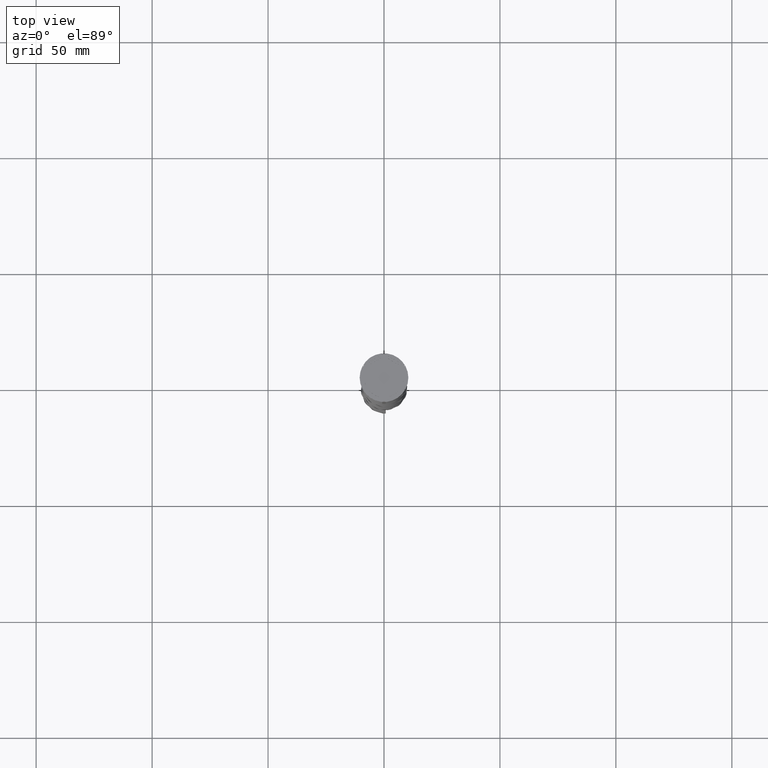
[diagram: clean part render]
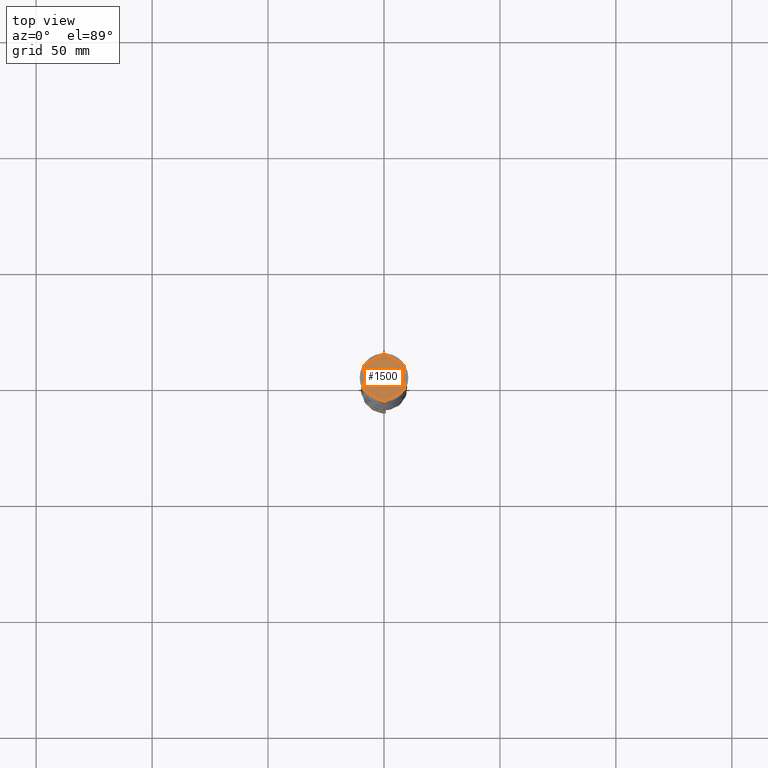
[diagram: same view with one face highlighted and labeled with its STEP entity id]
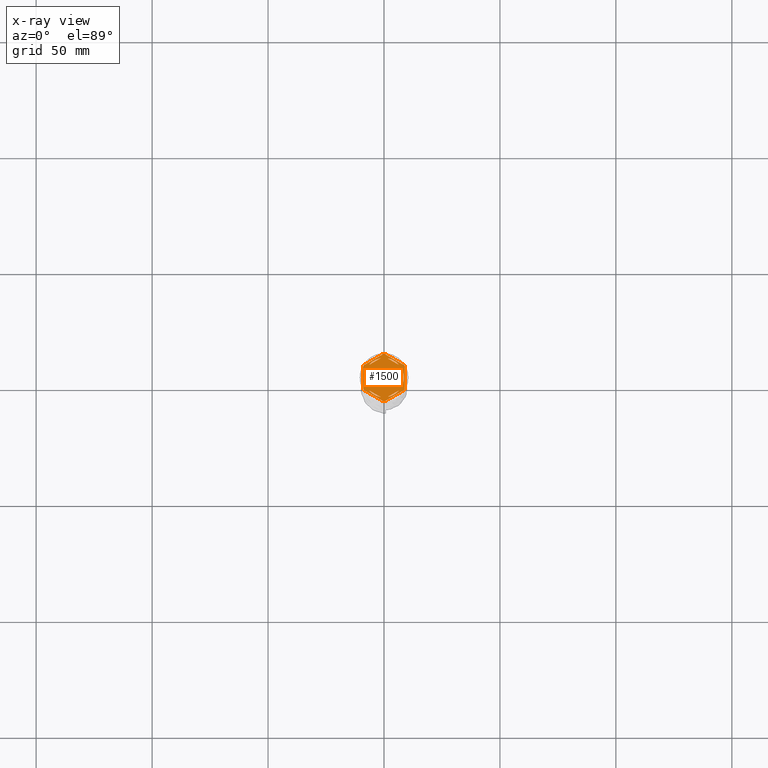
[diagram: x-ray of the same camera — body ghosted, the highlighted face saturated]
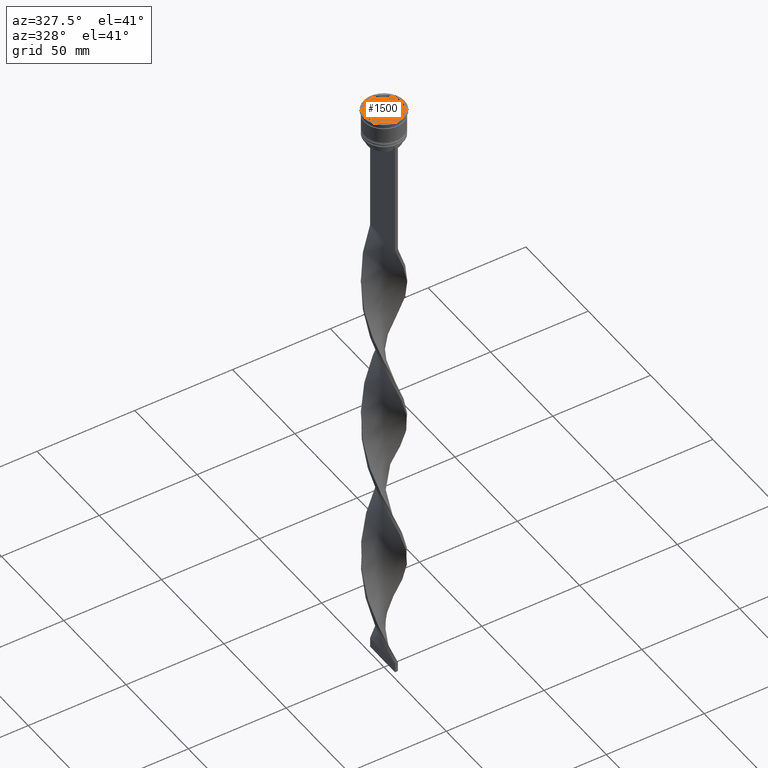
[diagram: same view with one face highlighted and labeled with its STEP entity id]
A machine part, top view. The second image highlights one B-rep face of the part: STEP entity #1500.
The next image is the same camera in x-ray: the body ghosted, the highlighted face saturated — about 0% of this face is hidden behind the body in this view.
A second angle (auxiliary view) of the same face is appended — the face is thin or edge-on in the first view.
In plain terms, the highlighted planar face has unit normal (0, 0, 1).
Its self-contained STEP definition (entity closure, byte-faithful):
#17 = CARTESIAN_POINT ( 'NONE',  ( -8.500000000000000000, 0.000000000000000000, -1.000000000000000000 ) ) ;
#70 = CARTESIAN_POINT ( 'NONE',  ( -9.000000000000001776, 5.196152422706632024, -1.000000000000000000 ) ) ;
#85 = AXIS2_PLACEMENT_3D ( 'NONE', #706, #2031, #2372 ) ;
#88 = VECTOR ( 'NONE', #2494, 1000.000000000000000 ) ;
#136 = CARTESIAN_POINT ( 'NONE',  ( 9.000000000000001776, -5.196152422706632024, -1.000000000000000000 ) ) ;
#250 = EDGE_LOOP ( 'NONE', ( #799, #1407 ) ) ;
#266 = ORIENTED_EDGE ( 'NONE', *, *, #3919, .F. ) ;
#283 = EDGE_CURVE ( 'NONE', #2610, #2583, #2771, .T. ) ;
#284 = FACE_BOUND ( 'NONE', #1393, .T. ) ;
#289 = ORIENTED_EDGE ( 'NONE', *, *, #3538, .F. ) ;
#310 = VERTEX_POINT ( 'NONE', #17 ) ;
#334 = LINE ( 'NONE', #4258, #2647 ) ;
#365 = DIRECTION ( 'NONE',  ( 0.000000000000000000, 0.000000000000000000, 1.000000000000000000 ) ) ;
#387 = LINE ( 'NONE', #1005, #617 ) ;
#403 = DIRECTION ( 'NONE',  ( 0.000000000000000000, 1.000000000000000000, 0.000000000000000000 ) ) ;
#414 = AXIS2_PLACEMENT_3D ( 'NONE', #1546, #3119, #458 ) ;
#430 = CARTESIAN_POINT ( 'NONE',  ( 8.673617379884035472E-16, 9.237604307034013473, -1.000000000000000888 ) ) ;
#454 = ORIENTED_EDGE ( 'NONE', *, *, #882, .F. ) ;
#458 = DIRECTION ( 'NONE',  ( 1.000000000000000000, 0.000000000000000000, 0.000000000000000000 ) ) ;
#462 = EDGE_LOOP ( 'NONE', ( #3193, #2486 ) ) ;
#496 = CARTESIAN_POINT ( 'NONE',  ( -9.000000000000001776, -5.196152422706632912, -1.000000000000000000 ) ) ;
#509 = VERTEX_POINT ( 'NONE', #4145 ) ;
#528 = CARTESIAN_POINT ( 'NONE',  ( 0.000000000000000000, 0.000000000000000000, -1.000000000000000000 ) ) ;
#541 = EDGE_CURVE ( 'NONE', #1607, #1862, #3087, .T. ) ;
#580 = DIRECTION ( 'NONE',  ( -0.8660254037844385966, 0.5000000000000000000, 0.000000000000000000 ) ) ;
#608 = CARTESIAN_POINT ( 'NONE',  ( 0.000000000000000000, 0.000000000000000000, -1.000000000000000000 ) ) ;
#610 = CARTESIAN_POINT ( 'NONE',  ( -8.000000000000000000, -4.618802153517006737, -1.000000000000000888 ) ) ;
#613 = ORIENTED_EDGE ( 'NONE', *, *, #1886, .F. ) ;
#617 = VECTOR ( 'NONE', #2655, 1000.000000000000000 ) ;
#628 = CIRCLE ( 'NONE', #414, 8.500000000000000000 ) ;
#634 = CIRCLE ( 'NONE', #1110, 8.500000000000000000 ) ;
#635 = EDGE_CURVE ( 'NONE', #3175, #3097, #3109, .T. ) ;
#697 = VECTOR ( 'NONE', #752, 1000.000000000000114 ) ;
#706 = CARTESIAN_POINT ( 'NONE',  ( 0.000000000000000000, 0.000000000000000000, -1.000000000000000000 ) ) ;
#738 = CARTESIAN_POINT ( 'NONE',  ( 6.487468592766547637, -5.492062568641006060, -1.000000000000000888 ) ) ;
#752 = DIRECTION ( 'NONE',  ( 0.8660254037844387076, -0.4999999999999997224, 0.000000000000000000 ) ) ;
#761 = CIRCLE ( 'NONE', #3976, 10.19999999999999574 ) ;
#764 = VECTOR ( 'NONE', #2004, 1000.000000000000000 ) ;
#766 = CARTESIAN_POINT ( 'NONE',  ( 0.000000000000000000, 0.000000000000000000, -1.000000000000000000 ) ) ;
#774 = VERTEX_POINT ( 'NONE', #1824 ) ;
#776 = CARTESIAN_POINT ( 'NONE',  ( 2.607697573705103160E-15, -10.39230484541326405, -1.000000000000000000 ) ) ;
#780 = EDGE_CURVE ( 'NONE', #1315, #1716, #761, .T. ) ;
#792 = CARTESIAN_POINT ( 'NONE',  ( -6.487468592766553854, 5.492062568640999842, -1.000000000000000888 ) ) ;
#799 = ORIENTED_EDGE ( 'NONE', *, *, #283, .F. ) ;
#848 = EDGE_LOOP ( 'NONE', ( #1113, #289 ) ) ;
#862 = VERTEX_POINT ( 'NONE', #2958 ) ;
#880 = DIRECTION ( 'NONE',  ( -0.000000000000000000, -0.000000000000000000, -1.000000000000000000 ) ) ;
#882 = EDGE_CURVE ( 'NONE', #2383, #967, #2642, .T. ) ;
#886 = FACE_OUTER_BOUND ( 'NONE', #2735, .T. ) ;
#890 = EDGE_CURVE ( 'NONE', #2900, #1862, #2926, .T. ) ;
#891 = DIRECTION ( 'NONE',  ( 1.000000000000000000, 0.000000000000000000, 0.000000000000000000 ) ) ;
#899 = AXIS2_PLACEMENT_3D ( 'NONE', #1651, #1614, #891 ) ;
#932 = DIRECTION ( 'NONE',  ( 0.000000000000000000, 0.000000000000000000, 1.000000000000000000 ) ) ;
#961 = DIRECTION ( 'NONE',  ( 1.000000000000000000, 8.881784197001252323E-16, 0.000000000000000000 ) ) ;
#963 = ORIENTED_EDGE ( 'NONE', *, *, #2700, .F. ) ;
#965 = DIRECTION ( 'NONE',  ( -0.8660254037844385966, 0.4999999999999999445, 0.000000000000000000 ) ) ;
#967 = VERTEX_POINT ( 'NONE', #738 ) ;
#976 = CIRCLE ( 'NONE', #1733, 10.19999999999999574 ) ;
#996 = VERTEX_POINT ( 'NONE', #1590 ) ;
#1005 = CARTESIAN_POINT ( 'NONE',  ( 0.000000000000000000, 10.39230484541326582, -1.000000000000000000 ) ) ;
#1014 = CARTESIAN_POINT ( 'NONE',  ( 7.999999999999998224, -4.618802153517008513, -1.000000000000000888 ) ) ;
#1022 = DIRECTION ( 'NONE',  ( 1.000000000000000000, 0.000000000000000000, 0.000000000000000000 ) ) ;
#1110 = AXIS2_PLACEMENT_3D ( 'NONE', #1649, #2306, #1022 ) ;
#1113 = ORIENTED_EDGE ( 'NONE', *, *, #3320, .F. ) ;
#1124 = VERTEX_POINT ( 'NONE', #2207 ) ;
#1130 = ORIENTED_EDGE ( 'NONE', *, *, #635, .T. ) ;
#1141 = DIRECTION ( 'NONE',  ( 1.000000000000000000, 0.000000000000000000, 0.000000000000000000 ) ) ;
#1212 = EDGE_CURVE ( 'NONE', #2664, #2325, #334, .T. ) ;
#1234 = DIRECTION ( 'NONE',  ( 1.000000000000000000, 0.000000000000000000, -0.000000000000000000 ) ) ;
#1315 = VERTEX_POINT ( 'NONE', #3071 ) ;
#1323 = EDGE_CURVE ( 'NONE', #2900, #862, #2401, .T. ) ;
#1345 = CARTESIAN_POINT ( 'NONE',  ( 6.487468592766552078, 5.492062568641001619, -1.000000000000000888 ) ) ;
#1386 = CIRCLE ( 'NONE', #1606, 8.500000000000000000 ) ;
#1393 = EDGE_LOOP ( 'NONE', ( #2258, #1572, #2608 ) ) ;
#1407 = ORIENTED_EDGE ( 'NONE', *, *, #3506, .F. ) ;
#1465 = AXIS2_PLACEMENT_3D ( 'NONE', #766, #3432, #3760 ) ;
#1494 = ORIENTED_EDGE ( 'NONE', *, *, #2108, .F. ) ;
#1500 = ADVANCED_FACE ( 'NONE', ( #2944, #2606, #3202, #1897, #284, #2918, #886 ), #2256, .T. ) ;
#1541 = CARTESIAN_POINT ( 'NONE',  ( 0.000000000000000000, 0.000000000000000000, -1.000000000000000000 ) ) ;
#1546 = CARTESIAN_POINT ( 'NONE',  ( 0.000000000000000000, 0.000000000000000000, -1.000000000000000000 ) ) ;
#1572 = ORIENTED_EDGE ( 'NONE', *, *, #3178, .F. ) ;
#1575 = CARTESIAN_POINT ( 'NONE',  ( 1.512531407233448366, 8.364343891910017703, -1.000000000000000888 ) ) ;
#1585 = LINE ( 'NONE', #3184, #2783 ) ;
#1590 = CARTESIAN_POINT ( 'NONE',  ( 0.3430780618347059052, -10.19422863405994306, -1.000000000000000000 ) ) ;
#1606 = AXIS2_PLACEMENT_3D ( 'NONE', #4209, #932, #4167 ) ;
#1607 = VERTEX_POINT ( 'NONE', #1832 ) ;
#1611 = EDGE_CURVE ( 'NONE', #4043, #1716, #2210, .T. ) ;
#1614 = DIRECTION ( 'NONE',  ( 0.000000000000000000, 0.000000000000000000, 1.000000000000000000 ) ) ;
#1615 = DIRECTION ( 'NONE',  ( 1.000000000000000000, 0.000000000000000000, 0.000000000000000000 ) ) ;
#1621 = CARTESIAN_POINT ( 'NONE',  ( 0.000000000000000000, 0.000000000000000000, -1.000000000000000000 ) ) ;
#1629 = CARTESIAN_POINT ( 'NONE',  ( -6.487468592766552078, -5.492062568641001619, -1.000000000000000888 ) ) ;
#1649 = CARTESIAN_POINT ( 'NONE',  ( 0.000000000000000000, 0.000000000000000000, -1.000000000000000000 ) ) ;
#1651 = CARTESIAN_POINT ( 'NONE',  ( 0.000000000000000000, 0.000000000000000000, -1.000000000000000000 ) ) ;
#1713 = EDGE_CURVE ( 'NONE', #1315, #4154, #387, .T. ) ;
#1716 = VERTEX_POINT ( 'NONE', #2964 ) ;
#1725 = AXIS2_PLACEMENT_3D ( 'NONE', #2980, #365, #2686 ) ;
#1733 = AXIS2_PLACEMENT_3D ( 'NONE', #608, #4273, #3095 ) ;
#1752 = CARTESIAN_POINT ( 'NONE',  ( -9.000000000000001776, -4.799999999999988276, -1.000000000000000000 ) ) ;
#1764 = DIRECTION ( 'NONE',  ( 0.8660254037844384856, 0.5000000000000003331, -0.000000000000000000 ) ) ;
#1766 = EDGE_CURVE ( 'NONE', #310, #1124, #634, .T. ) ;
#1791 = AXIS2_PLACEMENT_3D ( 'NONE', #3308, #2593, #961 ) ;
#1824 = CARTESIAN_POINT ( 'NONE',  ( 8.000000000000000000, -2.872281323269017417, -1.000000000000000888 ) ) ;
#1825 = VERTEX_POINT ( 'NONE', #1629 ) ;
#1832 = CARTESIAN_POINT ( 'NONE',  ( -9.000000000000001776, 4.799999999999988276, -1.000000000000000000 ) ) ;
#1837 = ORIENTED_EDGE ( 'NONE', *, *, #780, .F. ) ;
#1850 = DIRECTION ( 'NONE',  ( 1.000000000000000000, 0.000000000000000000, 0.000000000000000000 ) ) ;
#1862 = VERTEX_POINT ( 'NONE', #1752 ) ;
#1886 = EDGE_CURVE ( 'NONE', #1607, #4154, #4109, .T. ) ;
#1897 = FACE_BOUND ( 'NONE', #3124, .T. ) ;
#1908 = LINE ( 'NONE', #1014, #764 ) ;
#1910 = DIRECTION ( 'NONE',  ( 1.000000000000000000, 1.598721155460225418E-14, 0.000000000000000000 ) ) ;
#1931 = EDGE_LOOP ( 'NONE', ( #454, #266 ) ) ;
#1990 = LINE ( 'NONE', #610, #2020 ) ;
#2004 = DIRECTION ( 'NONE',  ( -1.877893248421449036E-16, -1.000000000000000000, 0.000000000000000000 ) ) ;
#2020 = VECTOR ( 'NONE', #965, 1000.000000000000114 ) ;
#2030 = EDGE_CURVE ( 'NONE', #996, #4152, #3090, .T. ) ;
#2031 = DIRECTION ( 'NONE',  ( 0.000000000000000000, 0.000000000000000000, 1.000000000000000000 ) ) ;
#2043 = CARTESIAN_POINT ( 'NONE',  ( -8.656921938165295316, -5.394228634059957450, -1.000000000000000000 ) ) ;
#2046 = CARTESIAN_POINT ( 'NONE',  ( 9.000000000000001776, -4.799999999999988276, -1.000000000000000000 ) ) ;
#2098 = DIRECTION ( 'NONE',  ( 0.8660254037844385966, 0.5000000000000001110, 0.000000000000000000 ) ) ;
#2108 = EDGE_CURVE ( 'NONE', #1825, #3504, #1386, .T. ) ;
#2207 = CARTESIAN_POINT ( 'NONE',  ( -8.000000000000000000, -2.872281323269016085, -1.000000000000000888 ) ) ;
#2210 = LINE ( 'NONE', #2842, #3640 ) ;
#2227 = EDGE_CURVE ( 'NONE', #996, #862, #2707, .T. ) ;
#2239 = ORIENTED_EDGE ( 'NONE', *, *, #3598, .F. ) ;
#2248 = ORIENTED_EDGE ( 'NONE', *, *, #541, .T. ) ;
#2256 = PLANE ( 'NONE',  #3773 ) ;
#2258 = ORIENTED_EDGE ( 'NONE', *, *, #3373, .F. ) ;
#2288 = DIRECTION ( 'NONE',  ( 0.8660254037844385966, -0.4999999999999999445, 0.000000000000000000 ) ) ;
#2292 = VECTOR ( 'NONE', #2772, 1000.000000000000000 ) ;
#2306 = DIRECTION ( 'NONE',  ( 0.000000000000000000, 0.000000000000000000, 1.000000000000000000 ) ) ;
#2325 = VERTEX_POINT ( 'NONE', #1345 ) ;
#2372 = DIRECTION ( 'NONE',  ( 1.000000000000000000, 0.000000000000000000, 0.000000000000000000 ) ) ;
#2383 = VERTEX_POINT ( 'NONE', #4283 ) ;
#2401 = LINE ( 'NONE', #496, #697 ) ;
#2403 = EDGE_CURVE ( 'NONE', #2325, #2664, #3623, .T. ) ;
#2486 = ORIENTED_EDGE ( 'NONE', *, *, #1212, .F. ) ;
#2490 = VECTOR ( 'NONE', #403, 1000.000000000000000 ) ;
#2494 = DIRECTION ( 'NONE',  ( 0.000000000000000000, 1.000000000000000000, 0.000000000000000000 ) ) ;
#2514 = DIRECTION ( 'NONE',  ( -0.8660254037844387076, -0.4999999999999998335, 0.000000000000000000 ) ) ;
#2583 = VERTEX_POINT ( 'NONE', #792 ) ;
#2593 = DIRECTION ( 'NONE',  ( -0.000000000000000000, -0.000000000000000000, -1.000000000000000000 ) ) ;
#2606 = FACE_BOUND ( 'NONE', #848, .T. ) ;
#2608 = ORIENTED_EDGE ( 'NONE', *, *, #1766, .F. ) ;
#2610 = VERTEX_POINT ( 'NONE', #3811 ) ;
#2642 = CIRCLE ( 'NONE', #85, 8.500000000000000000 ) ;
#2646 = VECTOR ( 'NONE', #1764, 1000.000000000000114 ) ;
#2647 = VECTOR ( 'NONE', #2288, 1000.000000000000114 ) ;
#2655 = DIRECTION ( 'NONE',  ( -0.8660254037844385966, -0.5000000000000001110, 0.000000000000000000 ) ) ;
#2664 = VERTEX_POINT ( 'NONE', #1575 ) ;
#2686 = DIRECTION ( 'NONE',  ( 1.000000000000000000, 0.000000000000000000, 0.000000000000000000 ) ) ;
#2700 = EDGE_CURVE ( 'NONE', #3175, #4152, #2775, .T. ) ;
#2707 = CIRCLE ( 'NONE', #3477, 10.19999999999999574 ) ;
#2735 = EDGE_LOOP ( 'NONE', ( #1130, #3118, #3744, #1837, #2748, #613, #2248, #3229, #3038, #3008, #3988, #963 ) ) ;
#2748 = ORIENTED_EDGE ( 'NONE', *, *, #1713, .T. ) ;
#2771 = CIRCLE ( 'NONE', #899, 8.500000000000000000 ) ;
#2772 = DIRECTION ( 'NONE',  ( 0.000000000000000000, -1.000000000000000000, 0.000000000000000000 ) ) ;
#2775 = CIRCLE ( 'NONE', #1791, 10.19999999999999574 ) ;
#2783 = VECTOR ( 'NONE', #2514, 1000.000000000000114 ) ;
#2791 = CARTESIAN_POINT ( 'NONE',  ( -8.000000000000000000, 2.872281323269016085, -1.000000000000000888 ) ) ;
#2842 = CARTESIAN_POINT ( 'NONE',  ( 9.000000000000001776, 5.196152422706632912, -1.000000000000000000 ) ) ;
#2868 = DIRECTION ( 'NONE',  ( 0.000000000000000000, 0.000000000000000000, 1.000000000000000000 ) ) ;
#2881 = EDGE_CURVE ( 'NONE', #4043, #3097, #976, .T. ) ;
#2900 = VERTEX_POINT ( 'NONE', #2043 ) ;
#2918 = FACE_BOUND ( 'NONE', #250, .T. ) ;
#2926 = CIRCLE ( 'NONE', #1465, 10.19999999999999574 ) ;
#2935 = VECTOR ( 'NONE', #2098, 1000.000000000000000 ) ;
#2944 = FACE_BOUND ( 'NONE', #462, .T. ) ;
#2958 = CARTESIAN_POINT ( 'NONE',  ( -0.3430780618347024080, -10.19422863405994306, -1.000000000000000000 ) ) ;
#2964 = CARTESIAN_POINT ( 'NONE',  ( 0.3430780618347050170, 10.19422863405994306, -1.000000000000000000 ) ) ;
#2980 = CARTESIAN_POINT ( 'NONE',  ( 0.000000000000000000, 0.000000000000000000, -1.000000000000000000 ) ) ;
#3000 = AXIS2_PLACEMENT_3D ( 'NONE', #3443, #3461, #1141 ) ;
#3008 = ORIENTED_EDGE ( 'NONE', *, *, #2227, .F. ) ;
#3038 = ORIENTED_EDGE ( 'NONE', *, *, #1323, .T. ) ;
#3061 = CARTESIAN_POINT ( 'NONE',  ( -1.512531407233448366, -8.364343891910017703, -1.000000000000000888 ) ) ;
#3071 = CARTESIAN_POINT ( 'NONE',  ( -0.3430780618347059052, 10.19422863405994306, -1.000000000000000000 ) ) ;
#3087 = LINE ( 'NONE', #70, #2292 ) ;
#3090 = LINE ( 'NONE', #776, #2935 ) ;
#3095 = DIRECTION ( 'NONE',  ( 1.000000000000000000, 0.000000000000000000, 0.000000000000000000 ) ) ;
#3097 = VERTEX_POINT ( 'NONE', #4004 ) ;
#3109 = LINE ( 'NONE', #136, #2490 ) ;
#3118 = ORIENTED_EDGE ( 'NONE', *, *, #2881, .F. ) ;
#3119 = DIRECTION ( 'NONE',  ( 0.000000000000000000, 0.000000000000000000, 1.000000000000000000 ) ) ;
#3124 = EDGE_LOOP ( 'NONE', ( #1494, #2239 ) ) ;
#3146 = CARTESIAN_POINT ( 'NONE',  ( -8.000000000000000000, 4.618802153517004072, -1.000000000000000888 ) ) ;
#3175 = VERTEX_POINT ( 'NONE', #2046 ) ;
#3178 = EDGE_CURVE ( 'NONE', #1124, #3338, #3404, .T. ) ;
#3184 = CARTESIAN_POINT ( 'NONE',  ( -8.673617379884035472E-16, -9.237604307034013473, -1.000000000000000888 ) ) ;
#3193 = ORIENTED_EDGE ( 'NONE', *, *, #2403, .F. ) ;
#3202 = FACE_BOUND ( 'NONE', #1931, .T. ) ;
#3229 = ORIENTED_EDGE ( 'NONE', *, *, #890, .F. ) ;
#3305 = CARTESIAN_POINT ( 'NONE',  ( 8.656921938165297092, -5.394228634059953009, -1.000000000000000000 ) ) ;
#3308 = CARTESIAN_POINT ( 'NONE',  ( 0.000000000000000000, 0.000000000000000000, -1.000000000000000000 ) ) ;
#3319 = CARTESIAN_POINT ( 'NONE',  ( 0.000000000000000000, 0.000000000000000000, -1.000000000000000000 ) ) ;
#3320 = EDGE_CURVE ( 'NONE', #774, #509, #628, .T. ) ;
#3338 = VERTEX_POINT ( 'NONE', #2791 ) ;
#3371 = CARTESIAN_POINT ( 'NONE',  ( -8.656921938165297092, 5.394228634059953009, -1.000000000000000000 ) ) ;
#3373 = EDGE_CURVE ( 'NONE', #3338, #310, #4249, .T. ) ;
#3404 = LINE ( 'NONE', #3146, #88 ) ;
#3432 = DIRECTION ( 'NONE',  ( -0.000000000000000000, -0.000000000000000000, -1.000000000000000000 ) ) ;
#3435 = LINE ( 'NONE', #430, #2646 ) ;
#3443 = CARTESIAN_POINT ( 'NONE',  ( 0.000000000000000000, 0.000000000000000000, -1.000000000000000000 ) ) ;
#3461 = DIRECTION ( 'NONE',  ( -0.000000000000000000, -0.000000000000000000, -1.000000000000000000 ) ) ;
#3477 = AXIS2_PLACEMENT_3D ( 'NONE', #528, #880, #1850 ) ;
#3504 = VERTEX_POINT ( 'NONE', #3061 ) ;
#3506 = EDGE_CURVE ( 'NONE', #2583, #2610, #3435, .T. ) ;
#3538 = EDGE_CURVE ( 'NONE', #509, #774, #1908, .T. ) ;
#3598 = EDGE_CURVE ( 'NONE', #3504, #1825, #1990, .T. ) ;
#3623 = CIRCLE ( 'NONE', #1725, 8.500000000000000000 ) ;
#3629 = DIRECTION ( 'NONE',  ( 0.000000000000000000, 0.000000000000000000, 1.000000000000000000 ) ) ;
#3640 = VECTOR ( 'NONE', #580, 1000.000000000000227 ) ;
#3744 = ORIENTED_EDGE ( 'NONE', *, *, #1611, .T. ) ;
#3760 = DIRECTION ( 'NONE',  ( 1.000000000000000000, 0.000000000000000000, 0.000000000000000000 ) ) ;
#3773 = AXIS2_PLACEMENT_3D ( 'NONE', #1541, #2868, #1234 ) ;
#3811 = CARTESIAN_POINT ( 'NONE',  ( -1.512531407233451475, 8.364343891910017703, -1.000000000000000888 ) ) ;
#3844 = CARTESIAN_POINT ( 'NONE',  ( 8.656921938165297092, 5.394228634059953897, -1.000000000000000000 ) ) ;
#3894 = DIRECTION ( 'NONE',  ( -0.000000000000000000, -0.000000000000000000, -1.000000000000000000 ) ) ;
#3919 = EDGE_CURVE ( 'NONE', #967, #2383, #1585, .T. ) ;
#3976 = AXIS2_PLACEMENT_3D ( 'NONE', #1621, #3894, #1910 ) ;
#3980 = AXIS2_PLACEMENT_3D ( 'NONE', #3319, #3629, #1615 ) ;
#3988 = ORIENTED_EDGE ( 'NONE', *, *, #2030, .T. ) ;
#4004 = CARTESIAN_POINT ( 'NONE',  ( 9.000000000000001776, 4.799999999999988276, -1.000000000000000000 ) ) ;
#4043 = VERTEX_POINT ( 'NONE', #3844 ) ;
#4109 = CIRCLE ( 'NONE', #3000, 10.19999999999999574 ) ;
#4145 = CARTESIAN_POINT ( 'NONE',  ( 8.000000000000000000, 2.872281323269014752, -1.000000000000000888 ) ) ;
#4152 = VERTEX_POINT ( 'NONE', #3305 ) ;
#4154 = VERTEX_POINT ( 'NONE', #3371 ) ;
#4167 = DIRECTION ( 'NONE',  ( 1.000000000000000000, 0.000000000000000000, 0.000000000000000000 ) ) ;
#4209 = CARTESIAN_POINT ( 'NONE',  ( 0.000000000000000000, 0.000000000000000000, -1.000000000000000000 ) ) ;
#4249 = CIRCLE ( 'NONE', #3980, 8.500000000000000000 ) ;
#4258 = CARTESIAN_POINT ( 'NONE',  ( 8.000000000000000000, 4.618802153517006737, -1.000000000000000888 ) ) ;
#4273 = DIRECTION ( 'NONE',  ( -0.000000000000000000, -0.000000000000000000, -1.000000000000000000 ) ) ;
#4283 = CARTESIAN_POINT ( 'NONE',  ( 1.512531407233452363, -8.364343891910017703, -1.000000000000000888 ) ) ;